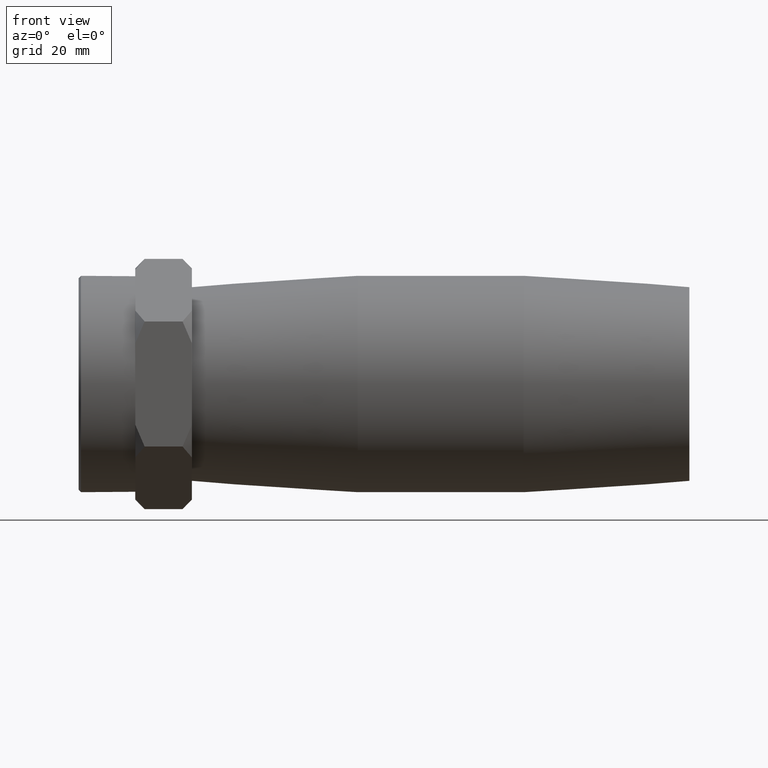
[diagram: clean part render]
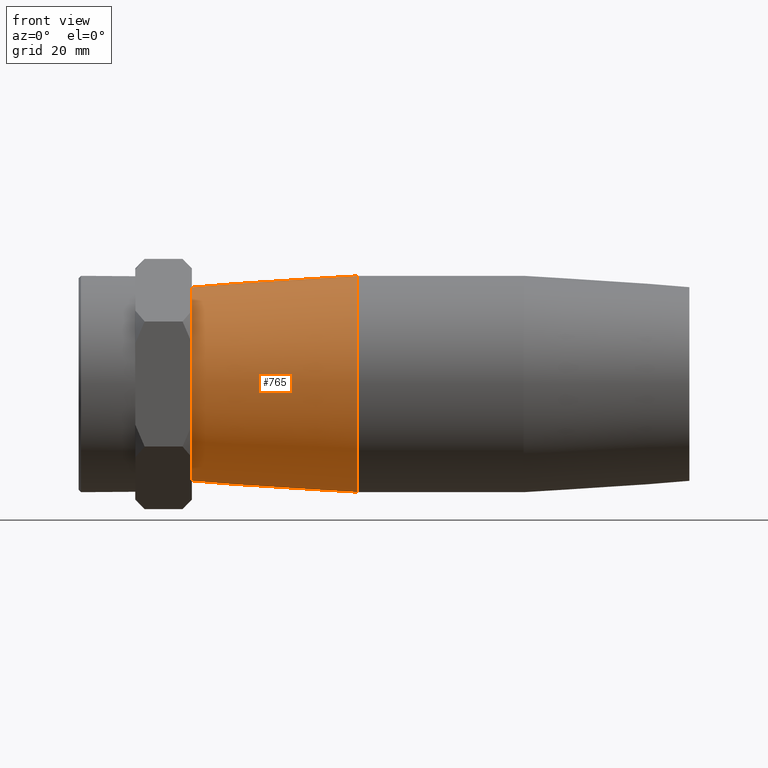
[diagram: same view with one face highlighted and labeled with its STEP entity id]
A machine part, front view. The second image highlights one B-rep face of the part: STEP entity #765.
In plain terms, the highlighted conical surface has half-angle 3.739 deg.
Its self-contained STEP definition (entity closure, byte-faithful):
#16=B_SPLINE_CURVE_WITH_KNOTS('',3,(#1375,#1376,#1377,#1378,#1379,#1380,
#1381,#1382,#1383,#1384,#1385,#1386,#1387,#1388,#1389,#1390,#1391,#1392,
#1393,#1394,#1395,#1396,#1397,#1398,#1399,#1400,#1401,#1402,#1403,#1404,
#1405,#1406,#1407,#1408),.UNSPECIFIED.,.T.,.F.,(4,2,2,2,2,2,2,2,2,2,2,2,
2,2,2,2,4),(0.,0.333175719461137,0.666351438922273,1.00123508973011,1.33611874053795,
1.67100239134579,2.00588604215363,2.33906176161477,2.6722374810759,3.0275100204908,
3.38278255990569,3.72930490811816,4.07582725633064,4.42234960454311,4.76887195275558,
5.12414449217048,5.47941703158537),.UNSPECIFIED.);
#151=FACE_BOUND('',#289,.T.);
#152=FACE_BOUND('',#290,.T.);
#206=FACE_OUTER_BOUND('',#288,.T.);
#288=EDGE_LOOP('',(#689));
#289=EDGE_LOOP('',(#690));
#290=EDGE_LOOP('',(#691));
#320=CIRCLE('',#832,19.8);
#332=CIRCLE('',#857,22.);
#389=VERTEX_POINT('',#1305);
#401=VERTEX_POINT('',#1374);
#403=VERTEX_POINT('',#1412);
#484=EDGE_CURVE('',#389,#389,#320,.T.);
#496=EDGE_CURVE('',#401,#401,#16,.T.);
#498=EDGE_CURVE('',#403,#403,#332,.T.);
#689=ORIENTED_EDGE('',*,*,#498,.F.);
#690=ORIENTED_EDGE('',*,*,#496,.T.);
#691=ORIENTED_EDGE('',*,*,#484,.T.);
#711=CONICAL_SURFACE('',#866,20.9,3.73876496767996);
#765=ADVANCED_FACE('',(#206,#151,#152),#711,.T.);
#832=AXIS2_PLACEMENT_3D('',#1306,#1021,#1022);
#857=AXIS2_PLACEMENT_3D('',#1413,#1071,#1072);
#866=AXIS2_PLACEMENT_3D('',#1425,#1089,#1090);
#1021=DIRECTION('center_axis',(1.,0.,0.));
#1022=DIRECTION('ref_axis',(0.,0.,-1.));
#1071=DIRECTION('center_axis',(1.,0.,0.));
#1072=DIRECTION('ref_axis',(0.,0.,-1.));
#1089=DIRECTION('center_axis',(1.,0.,0.));
#1090=DIRECTION('ref_axis',(0.,1.,0.));
#1305=CARTESIAN_POINT('',(-50.5,19.8,0.));
#1306=CARTESIAN_POINT('Origin',(-50.5,0.,0.));
#1374=CARTESIAN_POINT('',(-35.6532491292576,18.7030223501892,9.03313272026607));
#1375=CARTESIAN_POINT('Ctrl Pts',(-35.6532491292575,18.7030223501892,9.03313272026607));
#1376=CARTESIAN_POINT('Ctrl Pts',(-36.761471233215,18.6378113555117,9.00163729889978));
#1377=CARTESIAN_POINT('Ctrl Pts',(-37.9311065854491,18.6832747567534,8.74188020331631));
#1378=CARTESIAN_POINT('Ctrl Pts',(-40.0569673214905,18.9545959906609,7.77807496941813));
#1379=CARTESIAN_POINT('Ctrl Pts',(-41.0145427311378,19.1725009459007,7.07478278568649));
#1380=CARTESIAN_POINT('Ctrl Pts',(-42.5198406190459,19.5841300671971,5.48620935728318));
#1381=CARTESIAN_POINT('Ctrl Pts',(-43.1726841411534,19.8067372502853,4.48780514474254));
#1382=CARTESIAN_POINT('Ctrl Pts',(-44.0413360300287,20.1207182310719,2.30325119665917));
#1383=CARTESIAN_POINT('Ctrl Pts',(-44.2565540441336,20.2079875575121,1.11627883602613));
#1384=CARTESIAN_POINT('Ctrl Pts',(-44.2565540441336,20.2079875575121,-1.11627883602613));
#1385=CARTESIAN_POINT('Ctrl Pts',(-44.0413360300287,20.1207182310719,-2.30325119665917));
#1386=CARTESIAN_POINT('Ctrl Pts',(-43.1726841411534,19.8067372502853,-4.48780514474254));
#1387=CARTESIAN_POINT('Ctrl Pts',(-42.5198406190459,19.5841300671971,-5.48620935728318));
#1388=CARTESIAN_POINT('Ctrl Pts',(-41.0145427311378,19.1725009459007,-7.07478278568649));
#1389=CARTESIAN_POINT('Ctrl Pts',(-40.0569673214905,18.9545959906609,-7.77807496941813));
#1390=CARTESIAN_POINT('Ctrl Pts',(-37.9311065854491,18.6832747567534,-8.74188020331631));
#1391=CARTESIAN_POINT('Ctrl Pts',(-36.761471233215,18.6378113555117,-9.00163729889978));
#1392=CARTESIAN_POINT('Ctrl Pts',(-34.4715277188694,18.7725582566901,-9.06671697528574));
#1393=CARTESIAN_POINT('Ctrl Pts',(-33.2319685144413,18.9743877337497,-8.84640943559098));
#1394=CARTESIAN_POINT('Ctrl Pts',(-30.9775263544034,19.5380260680101,-7.9208530060737));
#1395=CARTESIAN_POINT('Ctrl Pts',(-29.9602827952173,19.8915534785994,-7.21633100250376));
#1396=CARTESIAN_POINT('Ctrl Pts',(-28.3763568207161,20.509348046845,-5.60949899722444));
#1397=CARTESIAN_POINT('Ctrl Pts',(-27.6920122211524,20.8178673419263,-4.60253380907368));
#1398=CARTESIAN_POINT('Ctrl Pts',(-26.7757171416292,21.2479447010774,-2.37591043426106));
#1399=CARTESIAN_POINT('Ctrl Pts',(-26.5447060253463,21.3653954478487,-1.15507449404158));
#1400=CARTESIAN_POINT('Ctrl Pts',(-26.5447060253463,21.3653954478487,1.15507449404158));
#1401=CARTESIAN_POINT('Ctrl Pts',(-26.7757171416292,21.2479447010774,2.37591043426106));
#1402=CARTESIAN_POINT('Ctrl Pts',(-27.6920122211524,20.8178673419263,4.60253380907368));
#1403=CARTESIAN_POINT('Ctrl Pts',(-28.3763568207161,20.509348046845,5.60949899722443));
#1404=CARTESIAN_POINT('Ctrl Pts',(-29.9602827952173,19.8915534785994,7.21633100250376));
#1405=CARTESIAN_POINT('Ctrl Pts',(-30.9775263544034,19.5380260680101,7.92085300607371));
#1406=CARTESIAN_POINT('Ctrl Pts',(-33.2319685144414,18.9743877337497,8.84640943559098));
#1407=CARTESIAN_POINT('Ctrl Pts',(-34.4715277188694,18.7725582566901,9.06671697528574));
#1408=CARTESIAN_POINT('Ctrl Pts',(-35.6532491292575,18.7030223501892,9.03313272026607));
#1412=CARTESIAN_POINT('',(-16.8333333333333,22.,0.));
#1413=CARTESIAN_POINT('Origin',(-16.8333333333333,0.,0.));
#1425=CARTESIAN_POINT('Origin',(-33.6666666666667,0.,0.));